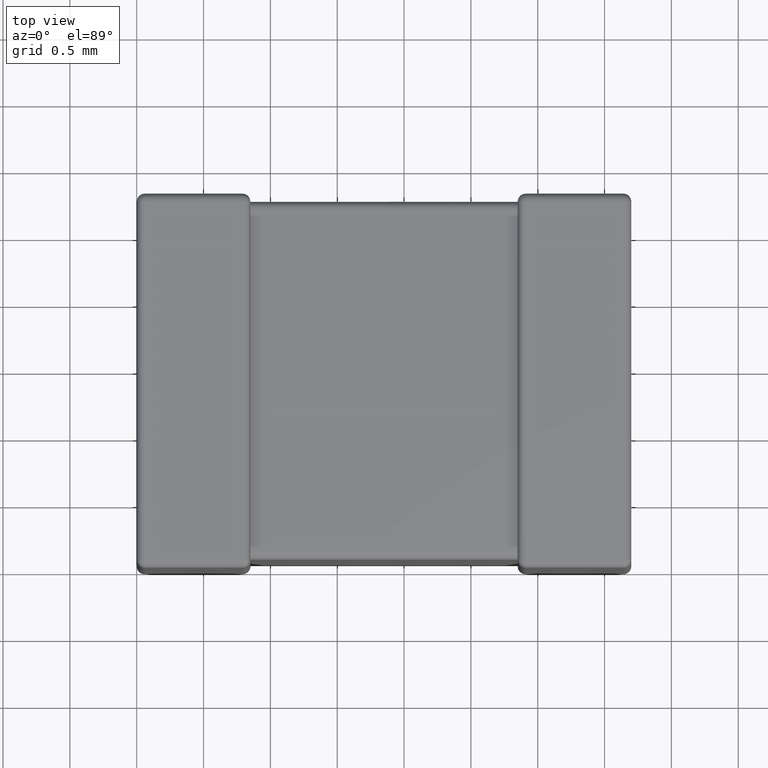
[diagram: clean part render]
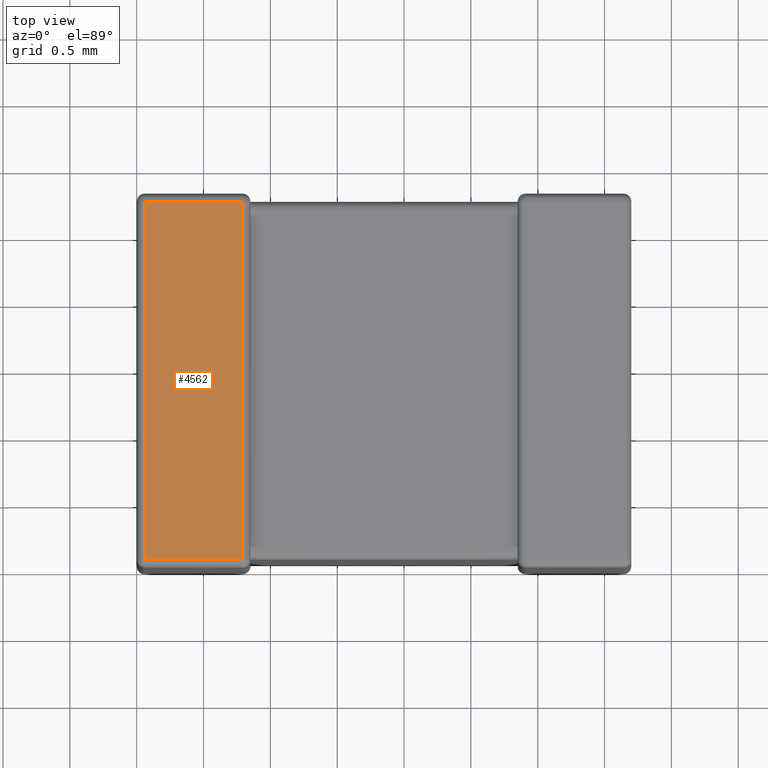
[diagram: same view with one face highlighted and labeled with its STEP entity id]
A machine part, top view. The second image highlights one B-rep face of the part: STEP entity #4562.
In plain terms, the highlighted planar face has unit normal (0, 0, -1).
Its self-contained STEP definition (entity closure, byte-faithful):
#103 = DIRECTION ( 'NONE',  ( 1.797417394704085656E-15, 1.000000000000000000, -0.000000000000000000 ) ) ;
#133 = CARTESIAN_POINT ( 'NONE',  ( 0.7896799999999948305, 5.231059792155203772E-15, 0.000000000000000000 ) ) ;
#230 = CARTESIAN_POINT ( 'NONE',  ( 0.7896799999999999375, 2.739679999999999893, 0.000000000000000000 ) ) ;
#261 = AXIS2_PLACEMENT_3D ( 'NONE', #1546, #1916, #4108 ) ;
#264 = ORIENTED_EDGE ( 'NONE', *, *, #1069, .T. ) ;
#341 = VECTOR ( 'NONE', #4629, 1000.000000000000000 ) ;
#366 = CARTESIAN_POINT ( 'NONE',  ( 0.06031999999999999168, 2.739679999999999893, 0.000000000000000000 ) ) ;
#425 = CARTESIAN_POINT ( 'NONE',  ( 0.06031999999999999168, 0.000000000000000000, 0.000000000000000000 ) ) ;
#638 = CARTESIAN_POINT ( 'NONE',  ( 0.7896799999999951636, 0.06031999999999999862, 0.000000000000000000 ) ) ;
#869 = CARTESIAN_POINT ( 'NONE',  ( 3.699999999999999734, 2.739679999999999893, 0.000000000000000000 ) ) ;
#931 = EDGE_LOOP ( 'NONE', ( #2355, #4024, #1613, #264 ) ) ;
#1011 = EDGE_CURVE ( 'NONE', #3860, #4478, #3972, .T. ) ;
#1069 = EDGE_CURVE ( 'NONE', #1455, #3860, #3704, .T. ) ;
#1455 = VERTEX_POINT ( 'NONE', #230 ) ;
#1476 = VECTOR ( 'NONE', #2677, 1000.000000000000000 ) ;
#1523 = FACE_OUTER_BOUND ( 'NONE', #931, .T. ) ;
#1546 = CARTESIAN_POINT ( 'NONE',  ( 3.699999999999999734, 0.000000000000000000, 0.000000000000000000 ) ) ;
#1613 = ORIENTED_EDGE ( 'NONE', *, *, #4521, .T. ) ;
#1803 = DIRECTION ( 'NONE',  ( 0.000000000000000000, -1.000000000000000000, 0.000000000000000000 ) ) ;
#1890 = LINE ( 'NONE', #133, #3412 ) ;
#1916 = DIRECTION ( 'NONE',  ( 0.000000000000000000, 0.000000000000000000, -1.000000000000000000 ) ) ;
#2355 = ORIENTED_EDGE ( 'NONE', *, *, #1011, .T. ) ;
#2503 = CARTESIAN_POINT ( 'NONE',  ( 3.699999999999999734, 0.06031999999999999862, 0.000000000000000000 ) ) ;
#2564 = PLANE ( 'NONE',  #261 ) ;
#2677 = DIRECTION ( 'NONE',  ( -1.000000000000000000, 0.000000000000000000, 0.000000000000000000 ) ) ;
#3290 = VERTEX_POINT ( 'NONE', #638 ) ;
#3412 = VECTOR ( 'NONE', #103, 1000.000000000000000 ) ;
#3459 = EDGE_CURVE ( 'NONE', #4478, #3290, #3992, .T. ) ;
#3704 = LINE ( 'NONE', #869, #1476 ) ;
#3860 = VERTEX_POINT ( 'NONE', #366 ) ;
#3972 = LINE ( 'NONE', #425, #4578 ) ;
#3992 = LINE ( 'NONE', #2503, #341 ) ;
#4024 = ORIENTED_EDGE ( 'NONE', *, *, #3459, .T. ) ;
#4108 = DIRECTION ( 'NONE',  ( -1.000000000000000000, 0.000000000000000000, -0.000000000000000000 ) ) ;
#4460 = CARTESIAN_POINT ( 'NONE',  ( 0.06031999999999999168, 0.06031999999999999862, 0.000000000000000000 ) ) ;
#4478 = VERTEX_POINT ( 'NONE', #4460 ) ;
#4521 = EDGE_CURVE ( 'NONE', #3290, #1455, #1890, .T. ) ;
#4562 = ADVANCED_FACE ( 'NONE', ( #1523 ), #2564, .F. ) ;
#4578 = VECTOR ( 'NONE', #1803, 1000.000000000000000 ) ;
#4629 = DIRECTION ( 'NONE',  ( 1.000000000000000000, -0.000000000000000000, -0.000000000000000000 ) ) ;